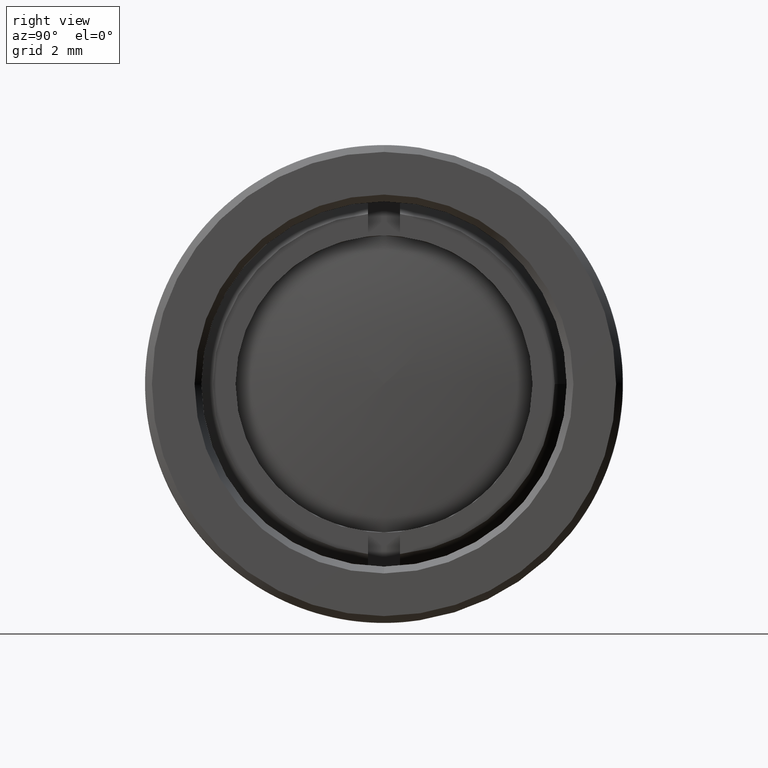
[diagram: clean part render]
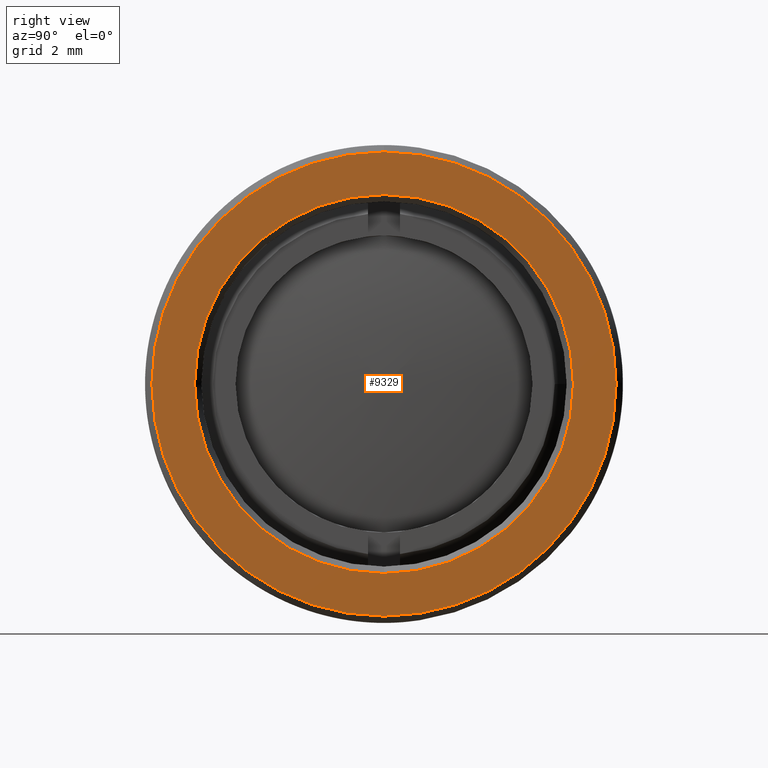
[diagram: same view with one face highlighted and labeled with its STEP entity id]
A machine part, right view. The second image highlights one B-rep face of the part: STEP entity #9329.
In plain terms, the highlighted planar face has unit normal (-1, 0, -0).
Its self-contained STEP definition (entity closure, byte-faithful):
#284 = DIRECTION ( 'NONE',  ( 1.000000000000000000, 0.0000000000000000000, 0.0000000000000000000 ) ) ;
#690 = ORIENTED_EDGE ( 'NONE', *, *, #2720, .T. ) ;
#784 = CIRCLE ( 'NONE', #11148, 7.048500000000004200 ) ;
#959 = EDGE_CURVE ( 'NONE', #11637, #5586, #8499, .T. ) ;
#975 = EDGE_LOOP ( 'NONE', ( #8431, #690 ) ) ;
#1038 = EDGE_CURVE ( 'NONE', #5586, #11637, #5137, .T. ) ;
#1061 = CARTESIAN_POINT ( 'NONE',  ( 10.41400000000000000, 0.0000000000000000000, -7.048500000000003300 ) ) ;
#1093 = DIRECTION ( 'NONE',  ( -0.0000000000000000000, 0.0000000000000000000, 1.000000000000000000 ) ) ;
#1305 = FACE_BOUND ( 'NONE', #975, .T. ) ;
#1647 = VERTEX_POINT ( 'NONE', #1061 ) ;
#2487 = CARTESIAN_POINT ( 'NONE',  ( 10.41400000000000000, 0.0000000000000000000, 0.0000000000000000000 ) ) ;
#2720 = EDGE_CURVE ( 'NONE', #13695, #1647, #784, .T. ) ;
#3173 = CARTESIAN_POINT ( 'NONE',  ( 10.41400000000000000, 8.889999999999998800, 0.0000000000000000000 ) ) ;
#3538 = CARTESIAN_POINT ( 'NONE',  ( 10.41400000000000000, 0.0000000000000000000, 0.0000000000000000000 ) ) ;
#3640 = DIRECTION ( 'NONE',  ( 0.0000000000000000000, 0.0000000000000000000, 1.000000000000000000 ) ) ;
#4261 = AXIS2_PLACEMENT_3D ( 'NONE', #7047, #284, #8200 ) ;
#4548 = AXIS2_PLACEMENT_3D ( 'NONE', #3173, #7866, #1093 ) ;
#5137 = CIRCLE ( 'NONE', #7251, 8.635999999999992100 ) ;
#5477 = CARTESIAN_POINT ( 'NONE',  ( 10.41400000000000000, 0.0000000000000000000, 0.0000000000000000000 ) ) ;
#5586 = VERTEX_POINT ( 'NONE', #12675 ) ;
#5996 = CARTESIAN_POINT ( 'NONE',  ( 10.41400000000000000, 8.631922963790123000E-016, 7.048500000000003300 ) ) ;
#6089 = DIRECTION ( 'NONE',  ( 1.000000000000000000, 0.0000000000000000000, 0.0000000000000000000 ) ) ;
#6608 = DIRECTION ( 'NONE',  ( 0.0000000000000000000, 0.0000000000000000000, 1.000000000000000000 ) ) ;
#6847 = ORIENTED_EDGE ( 'NONE', *, *, #1038, .T. ) ;
#7047 = CARTESIAN_POINT ( 'NONE',  ( 10.41400000000000000, 0.0000000000000000000, 0.0000000000000000000 ) ) ;
#7251 = AXIS2_PLACEMENT_3D ( 'NONE', #3538, #6089, #13994 ) ;
#7838 = CARTESIAN_POINT ( 'NONE',  ( 10.41400000000000000, 1.073157990092825300E-015, -8.635999999999992100 ) ) ;
#7866 = DIRECTION ( 'NONE',  ( -1.000000000000000000, 0.0000000000000000000, -0.0000000000000000000 ) ) ;
#8200 = DIRECTION ( 'NONE',  ( 0.0000000000000000000, 0.0000000000000000000, 1.000000000000000000 ) ) ;
#8431 = ORIENTED_EDGE ( 'NONE', *, *, #10491, .T. ) ;
#8499 = CIRCLE ( 'NONE', #4261, 8.635999999999992100 ) ;
#9329 = ADVANCED_FACE ( 'NONE', ( #10332, #1305 ), #11241, .F. ) ;
#10111 = AXIS2_PLACEMENT_3D ( 'NONE', #2487, #10409, #3640 ) ;
#10332 = FACE_OUTER_BOUND ( 'NONE', #13243, .T. ) ;
#10409 = DIRECTION ( 'NONE',  ( -1.000000000000000000, -0.0000000000000000000, -0.0000000000000000000 ) ) ;
#10491 = EDGE_CURVE ( 'NONE', #1647, #13695, #11040, .T. ) ;
#11040 = CIRCLE ( 'NONE', #10111, 7.048500000000004200 ) ;
#11148 = AXIS2_PLACEMENT_3D ( 'NONE', #5477, #13393, #6608 ) ;
#11217 = ORIENTED_EDGE ( 'NONE', *, *, #959, .T. ) ;
#11241 = PLANE ( 'NONE',  #4548 ) ;
#11637 = VERTEX_POINT ( 'NONE', #7838 ) ;
#12675 = CARTESIAN_POINT ( 'NONE',  ( 10.41400000000000000, 0.0000000000000000000, 8.635999999999992100 ) ) ;
#13243 = EDGE_LOOP ( 'NONE', ( #6847, #11217 ) ) ;
#13393 = DIRECTION ( 'NONE',  ( -1.000000000000000000, -0.0000000000000000000, -0.0000000000000000000 ) ) ;
#13695 = VERTEX_POINT ( 'NONE', #5996 ) ;
#13994 = DIRECTION ( 'NONE',  ( 0.0000000000000000000, 0.0000000000000000000, 1.000000000000000000 ) ) ;